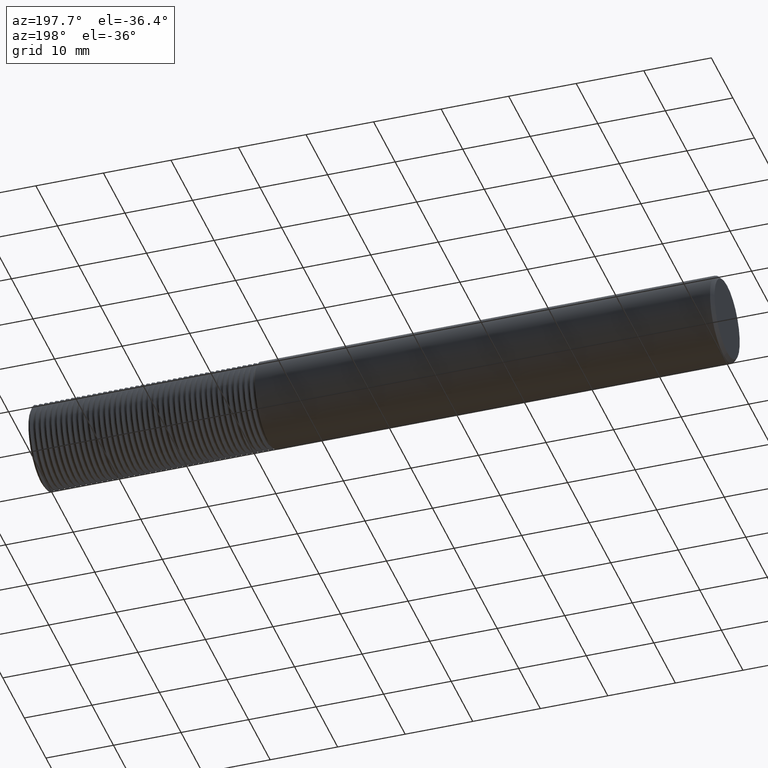
[diagram: clean part render]
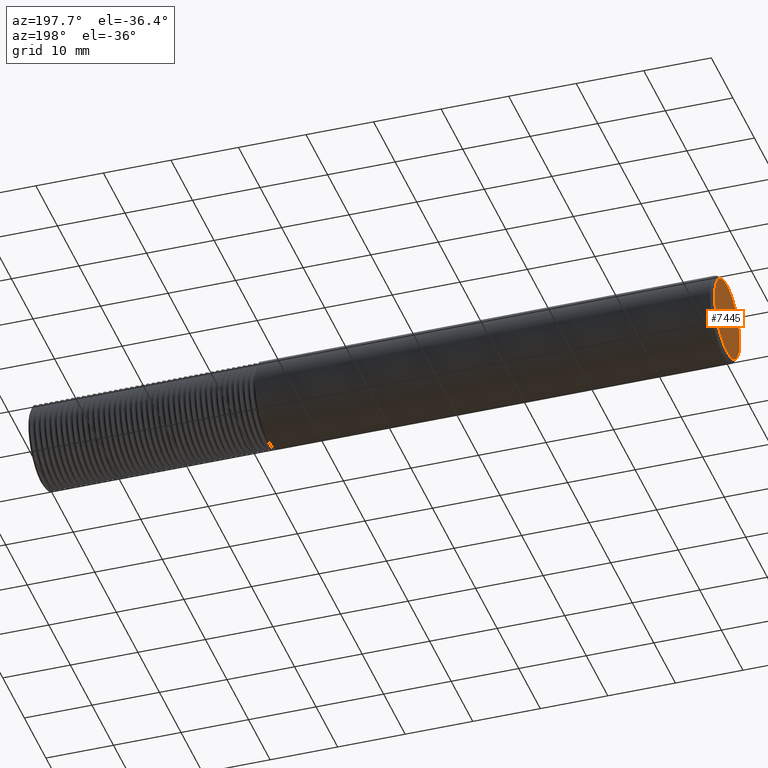
[diagram: same view with one face highlighted and labeled with its STEP entity id]
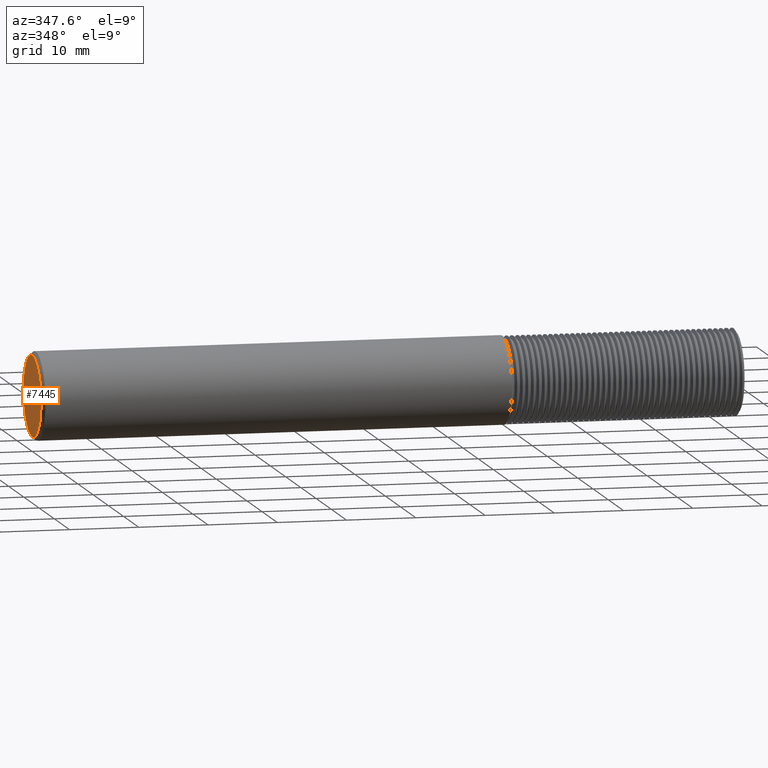
[diagram: same view with one face highlighted and labeled with its STEP entity id]
A machine part, auxiliary view. The second image highlights one B-rep face of the part: STEP entity #7445.
A second angle (auxiliary view) of the same face is appended — the face is thin or edge-on in the first view.
In plain terms, the highlighted planar face has unit normal (-1, 0, 0).
Its self-contained STEP definition (entity closure, byte-faithful):
#114 = FACE_OUTER_BOUND ( 'NONE', #4252, .T. ) ;
#259 = EDGE_CURVE ( 'NONE', #1896, #8598, #3970, .T. ) ;
#459 = AXIS2_PLACEMENT_3D ( 'NONE', #3066, #2489, #2404 ) ;
#479 = CIRCLE ( 'NONE', #7234, 0.2298500000000002763 ) ;
#953 = AXIS2_PLACEMENT_3D ( 'NONE', #2798, #5489, #2134 ) ;
#973 = DIRECTION ( 'NONE',  ( -1.000000000000000000, 0.000000000000000000, 0.000000000000000000 ) ) ;
#1896 = VERTEX_POINT ( 'NONE', #5668 ) ;
#2134 = DIRECTION ( 'NONE',  ( 0.000000000000000000, 0.000000000000000000, 1.000000000000000000 ) ) ;
#2404 = DIRECTION ( 'NONE',  ( 0.000000000000000000, 0.000000000000000000, 1.000000000000000000 ) ) ;
#2489 = DIRECTION ( 'NONE',  ( -1.000000000000000000, 0.000000000000000000, 0.000000000000000000 ) ) ;
#2739 = EDGE_CURVE ( 'NONE', #8598, #1896, #479, .T. ) ;
#2798 = CARTESIAN_POINT ( 'NONE',  ( 0.000000000000000000, 0.000000000000000000, 0.000000000000000000 ) ) ;
#3066 = CARTESIAN_POINT ( 'NONE',  ( 0.000000000000000000, 0.000000000000000000, 0.000000000000000000 ) ) ;
#3970 = CIRCLE ( 'NONE', #459, 0.2298500000000002763 ) ;
#4252 = EDGE_LOOP ( 'NONE', ( #8104, #6969 ) ) ;
#5489 = DIRECTION ( 'NONE',  ( -1.000000000000000000, 0.000000000000000000, 0.000000000000000000 ) ) ;
#5668 = CARTESIAN_POINT ( 'NONE',  ( 0.000000000000000000, 0.000000000000000000, -0.2298500000000002763 ) ) ;
#6015 = PLANE ( 'NONE',  #953 ) ;
#6296 = DIRECTION ( 'NONE',  ( 0.000000000000000000, 0.000000000000000000, 1.000000000000000000 ) ) ;
#6969 = ORIENTED_EDGE ( 'NONE', *, *, #2739, .T. ) ;
#7234 = AXIS2_PLACEMENT_3D ( 'NONE', #8418, #973, #6296 ) ;
#7445 = ADVANCED_FACE ( 'NONE', ( #114 ), #6015, .T. ) ;
#8104 = ORIENTED_EDGE ( 'NONE', *, *, #259, .T. ) ;
#8179 = CARTESIAN_POINT ( 'NONE',  ( 0.000000000000000000, 2.937315347754928730E-17, 0.2298500000000002763 ) ) ;
#8418 = CARTESIAN_POINT ( 'NONE',  ( 0.000000000000000000, 0.000000000000000000, 0.000000000000000000 ) ) ;
#8598 = VERTEX_POINT ( 'NONE', #8179 ) ;